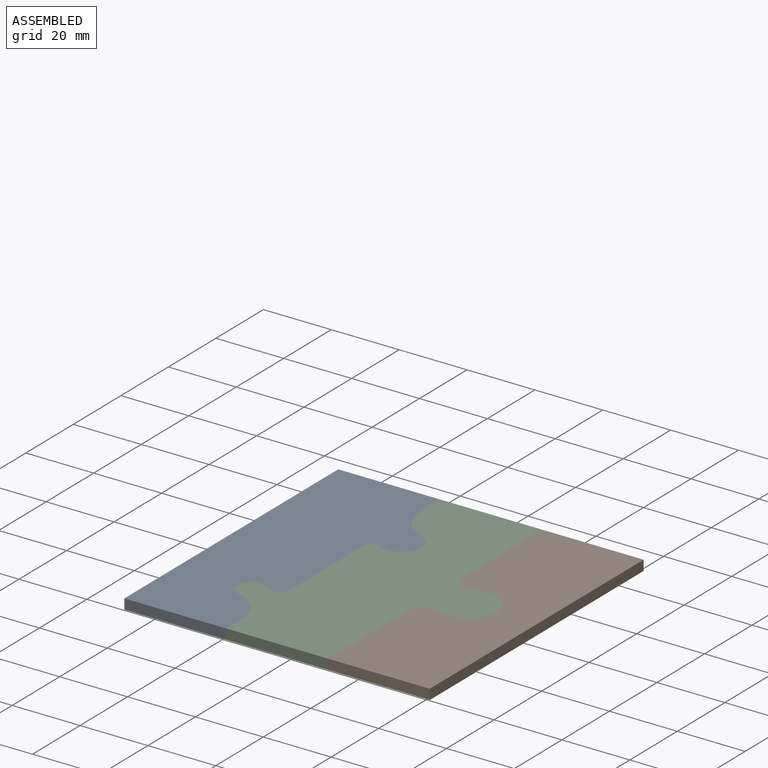
[diagram: assembled view]
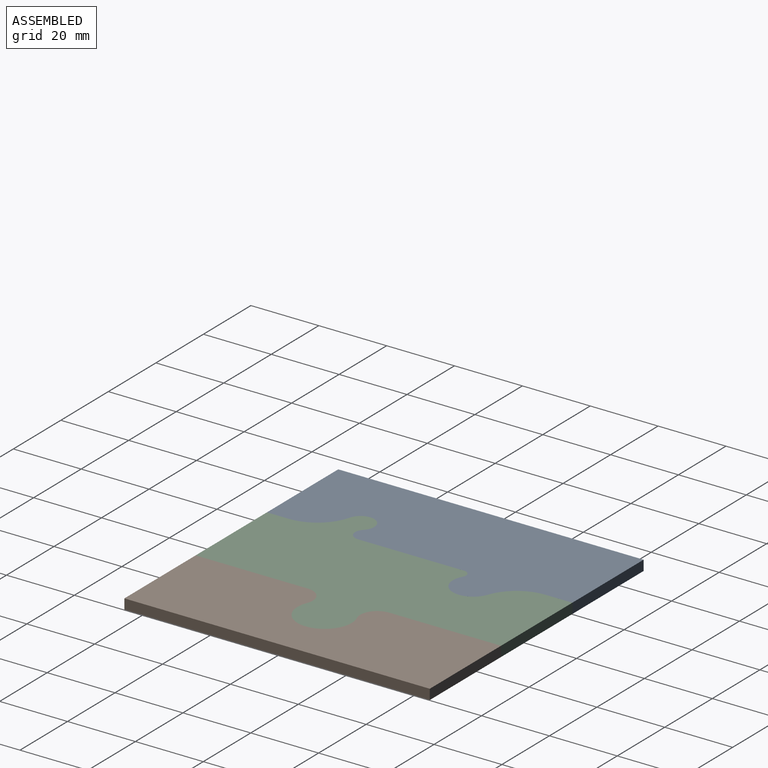
[diagram: assembled view, second angle]
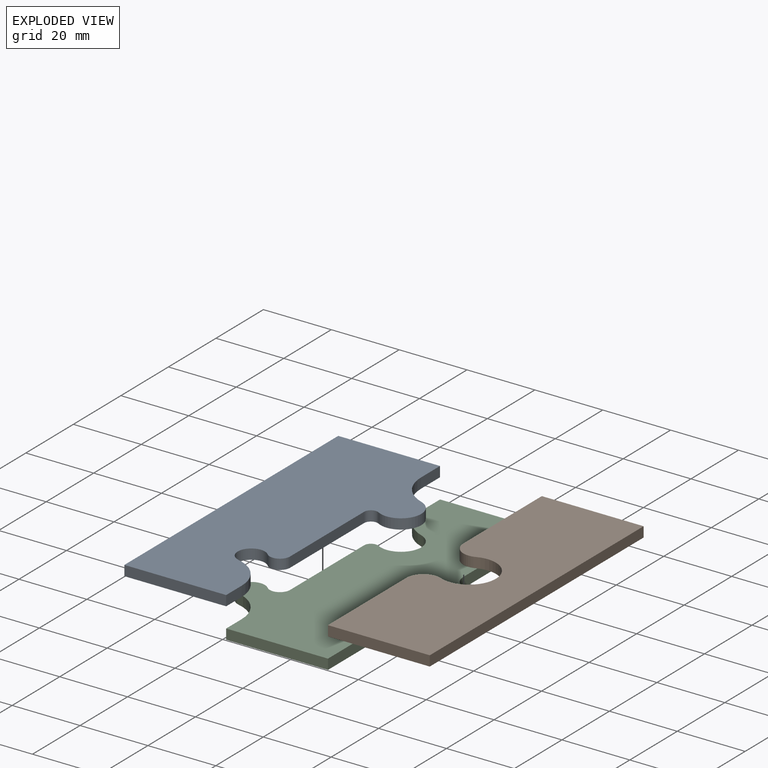
[diagram: exploded view]
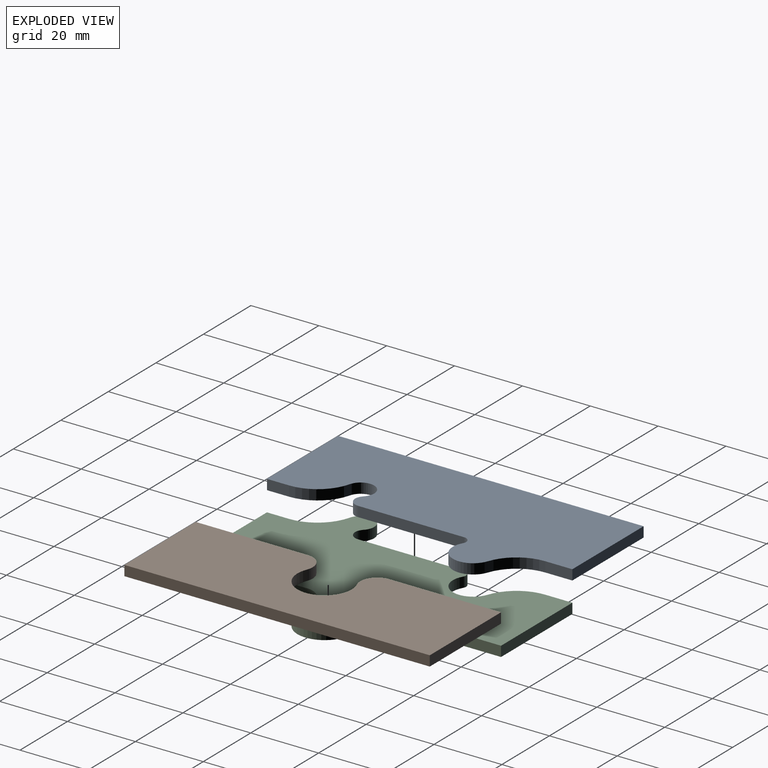
[diagram: exploded view, second angle]
ASSEMBLY  parts=3 mates=2
PART A: 14 faces, bbox 42x90x3 mm
  f0: plane 31.17x3mm, normal (1,0,0), area 93.5mm2, adj f1,f11,f12,f13
  f1: cylinder r=2mm len=3mm, axis (0,0,-1), area 12.6mm2, adj f0,f2,f12,f13
  f2: cylinder r=6mm len=11.66mm, axis (0,0,-1), area 59.9mm2, adj f1,f3,f12,f13
  f3: cylinder r=12mm len=11.31mm, axis (0,0,-1), area 44.3mm2, adj f2,f4,f12,f13
  f4: plane 8.03x3mm, normal (1,0,0), area 24.1mm2, adj f3,f5,f12,f13
  f5: plane 30x3mm, normal (0,1,0), area 90mm2, adj f4,f6,f12,f13
  f6: plane 90x3mm, normal (-1,0,0), area 270mm2, adj f5,f7,f12,f13
  f7: plane 30x3mm, normal (0,-1,0), area 90mm2, adj f6,f8,f12,f13
  f8: plane 6.51x3mm, normal (1,0,0), area 19.5mm2, adj f7,f9,f12,f13
  f9: cylinder r=12mm len=11.62mm, axis (0,0,-1), area 47.5mm2, adj f8,f10,f12,f13
  f10: cylinder r=4mm len=7.87mm, axis (0,0,-1), area 44.2mm2, adj f9,f11,f12,f13
  f11: cylinder r=3mm len=5.14mm, axis (0,0,-1), area 21.3mm2, adj f0,f10,f12,f13
  f12: plane 90x42mm, normal (0,0,1), area 2741.7mm2, adj f0,f1,f2,f3,f4,f5,f6,f7
  f13: plane 90x42mm, normal (0,0,-1), area 2741.7mm2, adj f0,f1,f2,f3,f4,f5,f6,f7
PART B: 10 faces, bbox 30x90x3 mm
  f0: cylinder r=5mm len=6.92mm, axis (0,0,-1), area 29.5mm2, adj f1,f7,f8,f9
  f1: plane 33x3mm, normal (-1,0,0), area 99mm2, adj f0,f2,f8,f9
  f2: plane 30x3mm, normal (0,-1,0), area 90mm2, adj f1,f3,f8,f9
  f3: plane 90x3mm, normal (1,0,0), area 270mm2, adj f2,f4,f8,f9
  f4: plane 30x3mm, normal (0,1,0), area 90mm2, adj f3,f5,f8,f9
  f5: plane 33x3mm, normal (-1,0,0), area 99mm2, adj f4,f6,f8,f9
  f6: cylinder r=5mm len=6.92mm, axis (0,0,-1), area 29.5mm2, adj f5,f7,f8,f9
  f7: cylinder r=8mm len=16mm, axis (0,0,-1), area 94.3mm2, adj f0,f6,f8,f9
  f8: plane 90x30mm, normal (0,0,1), area 2443.3mm2, adj f0,f1,f2,f3,f4,f5,f6,f7
  f9: plane 90x30mm, normal (0,0,-1), area 2443.3mm2, adj f0,f1,f2,f3,f4,f5,f6,f7
PART C: 18 faces, bbox 60x90x3 mm
  f0: plane 8.03x3mm, normal (-1,0,0), area 24.1mm2, adj f1,f15,f16,f17
  f1: cylinder r=12mm len=11.31mm, axis (0,0,-1), area 44.3mm2, adj f0,f2,f16,f17
  f2: cylinder r=6mm len=11.66mm, axis (0,0,-1), area 59.9mm2, adj f1,f3,f16,f17
  f3: cylinder r=2mm len=3mm, axis (0,0,-1), area 12.6mm2, adj f2,f4,f16,f17
  f4: plane 31.17x3mm, normal (-1,0,0), area 93.5mm2, adj f3,f5,f16,f17
  f5: cylinder r=3mm len=5.14mm, axis (0,0,-1), area 21.3mm2, adj f4,f6,f16,f17
  f6: cylinder r=4mm len=7.87mm, axis (0,0,-1), area 44.2mm2, adj f5,f7,f16,f17
  f7: cylinder r=12mm len=11.62mm, axis (0,0,-1), area 47.5mm2, adj f6,f8,f16,f17
  f8: plane 6.51x3mm, normal (-1,0,0), area 19.5mm2, adj f7,f9,f16,f17
  f9: plane 30x3mm, normal (0,-1,0), area 90mm2, adj f8,f10,f16,f17
  f10: plane 33x3mm, normal (1,0,0), area 99mm2, adj f9,f11,f16,f17
  f11: cylinder r=5mm len=6.92mm, axis (0,0,-1), area 29.5mm2, adj f10,f12,f16,f17
  f12: cylinder r=8mm len=16mm, axis (0,0,-1), area 94.3mm2, adj f11,f13,f16,f17
  f13: cylinder r=5mm len=6.92mm, axis (0,0,-1), area 29.5mm2, adj f12,f14,f16,f17
  f14: plane 33x3mm, normal (1,0,0), area 99mm2, adj f13,f15,f16,f17
  f15: plane 30x3mm, normal (0,1,0), area 90mm2, adj f0,f14,f16,f17
  f16: plane 90x60mm, normal (0,0,1), area 2915mm2, adj f0,f1,f2,f3,f4,f5,f6,f7
  f17: plane 90x60mm, normal (0,0,-1), area 2915mm2, adj f0,f1,f2,f3,f4,f5,f6,f7
PLACE A t=(-31.82,1.99,0)mm
PLACE B t=(28.18,1.99,0)mm
PLACE C t=(-1.82,1.99,0)mm
MATE fastened B.f9 <-> C.f17  axis (0,0,1) through (13.18,46.99,0)mm
MATE fastened C.f17 <-> A.f13  axis (0,0,1) through (-16.82,46.99,0)mm
